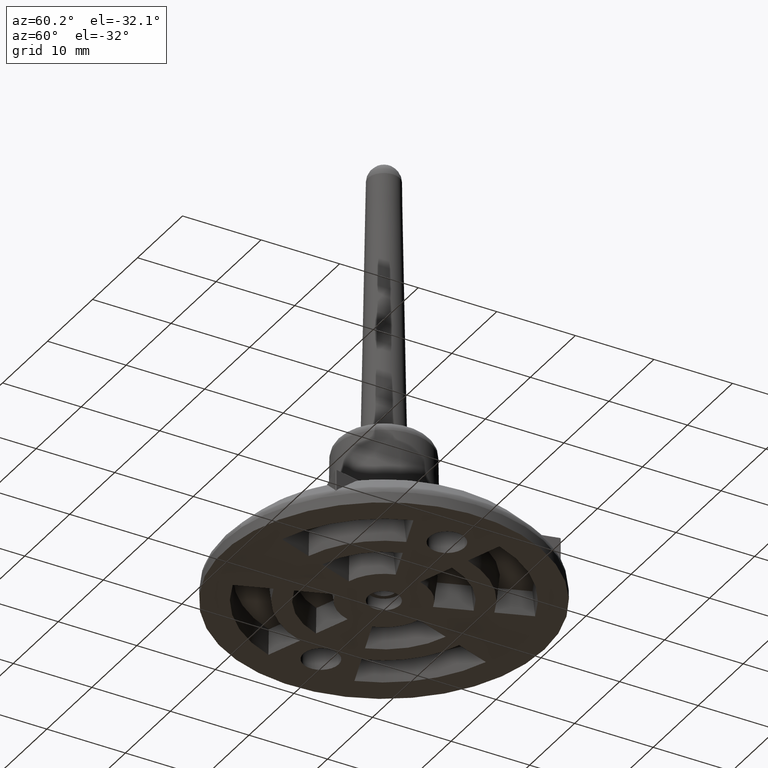
[diagram: clean part render]
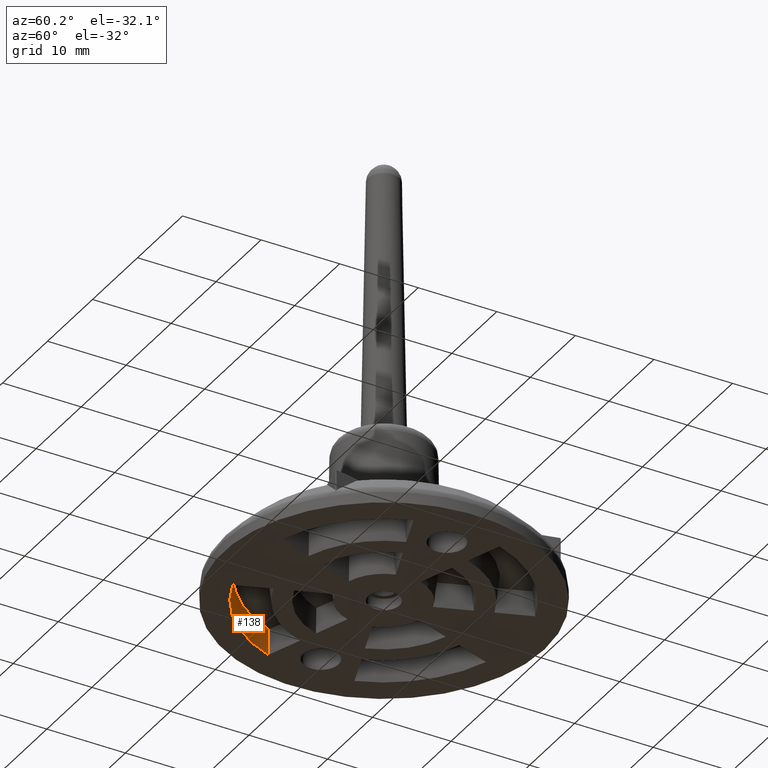
[diagram: same view with one face highlighted and labeled with its STEP entity id]
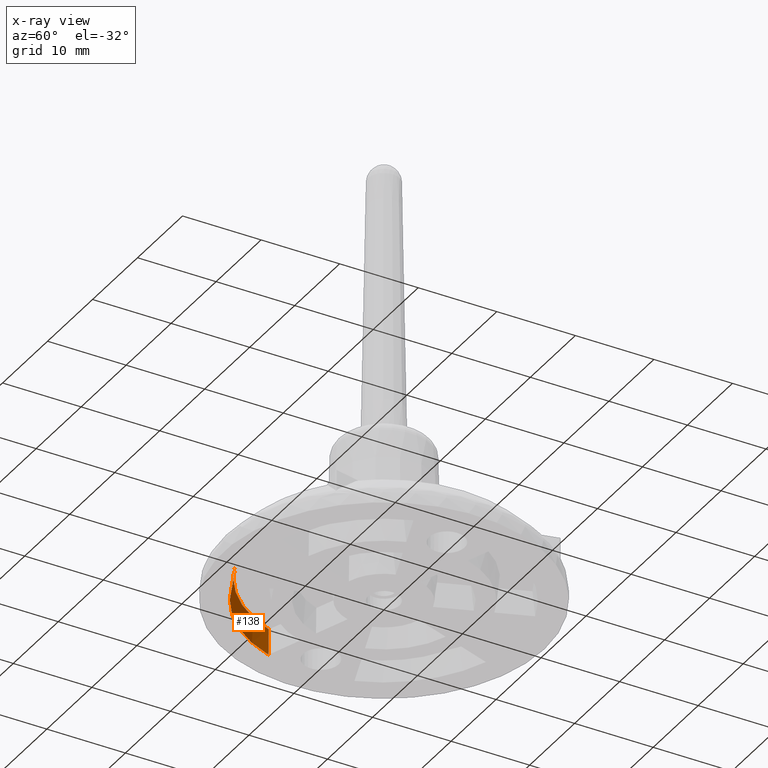
[diagram: x-ray of the same camera — body ghosted, the highlighted face saturated]
A machine part, auxiliary view. The second image highlights one B-rep face of the part: STEP entity #138.
The next image is the same camera in x-ray: the body ghosted, the highlighted face saturated — about 0% of this face is hidden behind the body in this view.
In plain terms, the highlighted conical surface has half-angle 7 deg.
Its self-contained STEP definition (entity closure, byte-faithful):
#138 = ADVANCED_FACE( '', ( #281 ), #282, .F. );
#281 = FACE_OUTER_BOUND( '', #557, .T. );
#282 = CONICAL_SURFACE( '', #558, 16.6499850000000, 0.122173047639603 );
#557 = EDGE_LOOP( '', ( #926, #927, #928, #929 ) );
#558 = AXIS2_PLACEMENT_3D( '', #930, #931, #932 );
#926 = ORIENTED_EDGE( '', *, *, #1744, .F. );
#927 = ORIENTED_EDGE( '', *, *, #1748, .F. );
#928 = ORIENTED_EDGE( '', *, *, #1749, .T. );
#929 = ORIENTED_EDGE( '', *, *, #1750, .T. );
#930 = CARTESIAN_POINT( '', ( -3.36975451311746E-032, 5.50340850772073E-016, 2.99601500000000 ) );
#931 = DIRECTION( '', ( 1.12474554136660E-032, -1.83690953073357E-016, -1.00000000000000 ) );
#932 = DIRECTION( '', ( -6.12303176911189E-017, 1.00000000000000, -1.83690953073357E-016 ) );
#1744 = EDGE_CURVE( '', #2064, #2065, #2066, .T. );
#1748 = EDGE_CURVE( '', #2072, #2064, #2073, .T. );
#1749 = EDGE_CURVE( '', #2072, #2074, #2075, .T. );
#1750 = EDGE_CURVE( '', #2074, #2065, #2076, .T. );
#2064 = VERTEX_POINT( '', #2580 );
#2065 = VERTEX_POINT( '', #2581 );
#2066 = CIRCLE( '', #2582, 16.6499850000000 );
#2072 = VERTEX_POINT( '', #2590 );
#2073 = B_SPLINE_CURVE_WITH_KNOTS( '', 3, ( #2591, #2592, #2593, #2594 ), .UNSPECIFIED., .F., .F., ( 4, 4 ), ( 0.000000000000000, 0.00304036914591736 ), .UNSPECIFIED. );
#2074 = VERTEX_POINT( '', #2595 );
#2075 = CIRCLE( '', #2596, 17.0178493862335 );
#2076 = B_SPLINE_CURVE_WITH_KNOTS( '', 3, ( #2597, #2598, #2599, #2600 ), .UNSPECIFIED., .F., .F., ( 4, 4 ), ( 0.000000000000000, 0.00304036914591736 ), .UNSPECIFIED. );
#2580 = CARTESIAN_POINT( '', ( -5.69463025607024, -15.6458680406961, 2.99601500000000 ) );
#2581 = CARTESIAN_POINT( '', ( -15.6458680406961, -5.69463025607023, 2.99601500000000 ) );
#2582 = AXIS2_PLACEMENT_3D( '', #3265, #3266, #3267 );
#2590 = CARTESIAN_POINT( '', ( -5.47340782340071, -16.1136279133926, 3.38593238649353E-015 ) );
#2591 = CARTESIAN_POINT( '', ( -5.47340782340071, -16.1136279133926, 3.38593238649353E-015 ) );
#2592 = CARTESIAN_POINT( '', ( -5.54760358208122, -15.9589032755774, 0.998823865357393 ) );
#2593 = CARTESIAN_POINT( '', ( -5.62135431492517, -15.8030088035885, 1.99750047569523 ) );
#2594 = CARTESIAN_POINT( '', ( -5.69463025607023, -15.6458680406961, 2.99601500000000 ) );
#2595 = CARTESIAN_POINT( '', ( -16.1136279133926, -5.47340782340071, 1.43142021725265E-015 ) );
#2596 = AXIS2_PLACEMENT_3D( '', #3273, #3274, #3275 );
#2597 = CARTESIAN_POINT( '', ( -16.1136279133926, -5.47340782340071, 1.43142021725265E-015 ) );
#2598 = CARTESIAN_POINT( '', ( -15.9589032755774, -5.54760358208121, 0.998823865357392 ) );
#2599 = CARTESIAN_POINT( '', ( -15.8030088035885, -5.62135431492517, 1.99750047569523 ) );
#2600 = CARTESIAN_POINT( '', ( -15.6458680406961, -5.69463025607023, 2.99601500000000 ) );
#3265 = CARTESIAN_POINT( '', ( -3.36975451311746E-032, 5.50340850772073E-016, 2.99601500000000 ) );
#3266 = DIRECTION( '', ( 1.12474554136660E-032, -1.83690953073357E-016, -1.00000000000000 ) );
#3267 = DIRECTION( '', ( -1.00000000000000, -1.16741468922377E-016, 1.01968962758690E-032 ) );
#3273 = CARTESIAN_POINT( '', ( 2.39573453368183E-047, -3.91266062960395E-031, -2.13002358806502E-015 ) );
#3274 = DIRECTION( '', ( 1.12474554136660E-032, -1.83690953073357E-016, -1.00000000000000 ) );
#3275 = DIRECTION( '', ( -6.12303176911189E-017, 1.00000000000000, -1.83690953073357E-016 ) );